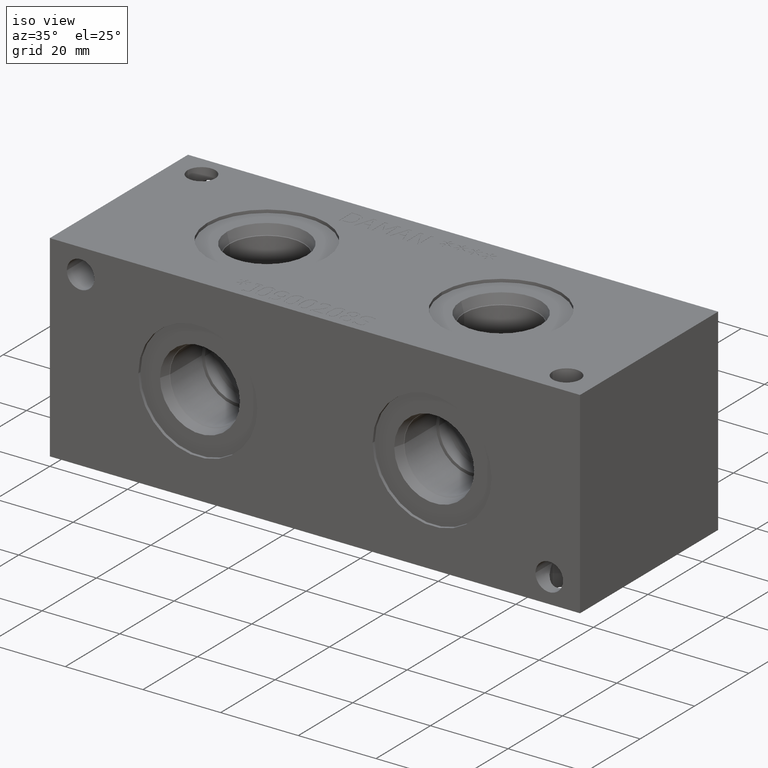
[diagram: clean part render]
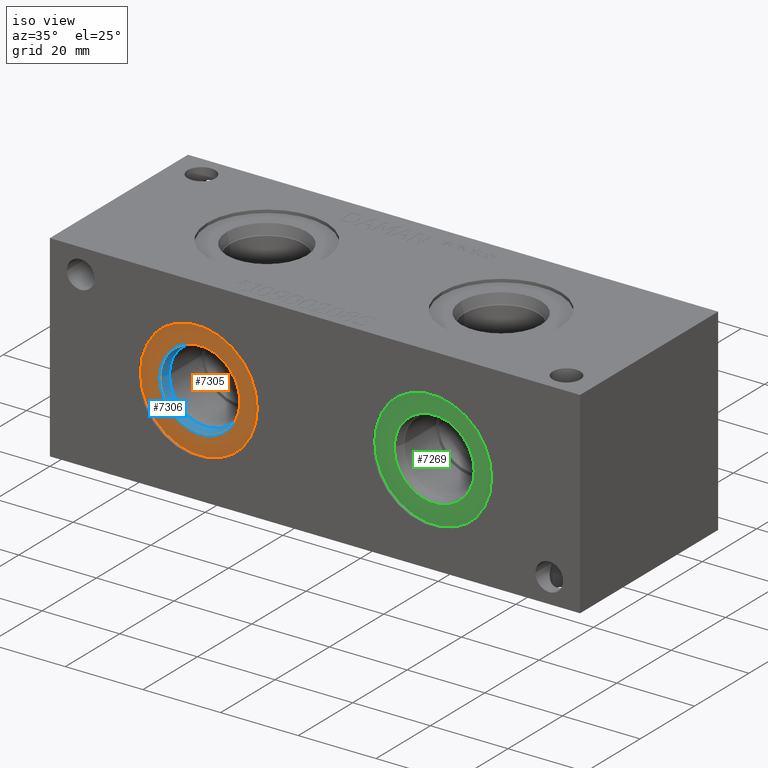
[diagram: same view with three faces highlighted in distinct colors, each labeled with its STEP entity id]
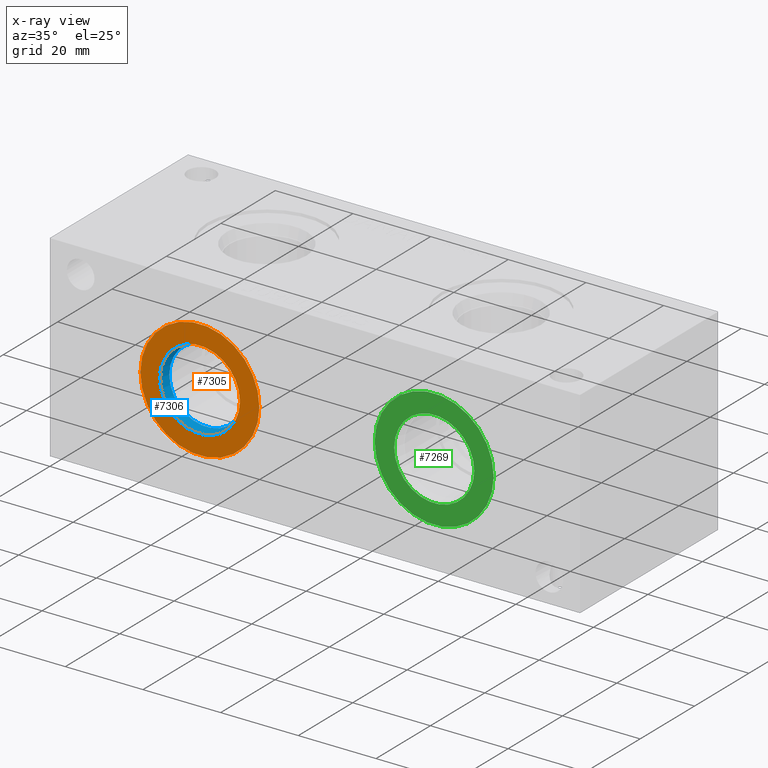
[diagram: x-ray of the same camera — body ghosted, the three highlighted faces saturated]
A machine part, iso view with three faces highlighted in distinct colors.
The next image is the same camera in x-ray (body ghosted, the three faces saturated) — at least one of them is partly hidden behind the body in this view.
Their STEP definitions:

[orange] entity #7305 — the highlighted planar face has unit normal (0, 1, 0).
#134=CIRCLE('',#7644,15.3162);
#135=CIRCLE('',#7645,15.3162);
#136=CIRCLE('',#7647,10.2997);
#137=CIRCLE('',#7648,10.2997);
#194=FACE_BOUND('',#1178,.T.);
#401=PLANE('',#7646);
#764=FACE_OUTER_BOUND('',#1177,.T.);
#1177=EDGE_LOOP('',(#6403,#6404));
#1178=EDGE_LOOP('',(#6405,#6406));
#3438=VERTEX_POINT('',#12742);
#3439=VERTEX_POINT('',#12744);
#3440=VERTEX_POINT('',#12748);
#3441=VERTEX_POINT('',#12749);
#4441=EDGE_CURVE('',#3438,#3439,#134,.T.);
#4442=EDGE_CURVE('',#3439,#3438,#135,.T.);
#4443=EDGE_CURVE('',#3440,#3441,#136,.T.);
#4444=EDGE_CURVE('',#3441,#3440,#137,.T.);
#6403=ORIENTED_EDGE('',*,*,#4442,.F.);
#6404=ORIENTED_EDGE('',*,*,#4441,.F.);
#6405=ORIENTED_EDGE('',*,*,#4443,.T.);
#6406=ORIENTED_EDGE('',*,*,#4444,.T.);
#7305=ADVANCED_FACE('',(#764,#194),#401,.F.);
#7644=AXIS2_PLACEMENT_3D('',#12745,#8935,#8936);
#7645=AXIS2_PLACEMENT_3D('',#12746,#8937,#8938);
#7646=AXIS2_PLACEMENT_3D('',#12747,#8939,#8940);
#7647=AXIS2_PLACEMENT_3D('',#12750,#8941,#8942);
#7648=AXIS2_PLACEMENT_3D('',#12751,#8943,#8944);
#8935=DIRECTION('center_axis',(0.,1.,0.));
#8936=DIRECTION('ref_axis',(1.,0.,0.));
#8937=DIRECTION('center_axis',(0.,1.,0.));
#8938=DIRECTION('ref_axis',(1.,0.,0.));
#8939=DIRECTION('center_axis',(0.,1.,0.));
#8940=DIRECTION('ref_axis',(0.,0.,1.));
#8941=DIRECTION('center_axis',(0.,1.,0.));
#8942=DIRECTION('ref_axis',(1.,0.,0.));
#8943=DIRECTION('center_axis',(0.,1.,0.));
#8944=DIRECTION('ref_axis',(1.,0.,0.));
#12742=CARTESIAN_POINT('',(22.7838,0.7874,25.4));
#12744=CARTESIAN_POINT('',(53.4162,0.7874,25.4));
#12745=CARTESIAN_POINT('Origin',(38.1,0.7874,25.4));
#12746=CARTESIAN_POINT('Origin',(38.1,0.7874,25.4));
#12747=CARTESIAN_POINT('Origin',(48.3997,0.7874,25.4));
#12748=CARTESIAN_POINT('',(48.3997,0.7874,25.4));
#12749=CARTESIAN_POINT('',(27.8003,0.787400000000001,25.4));
#12750=CARTESIAN_POINT('Origin',(38.1,0.7874,25.4));
#12751=CARTESIAN_POINT('Origin',(38.1,0.7874,25.4));

[blue] entity #7306 — the highlighted conical surface has half-angle 15.05 deg.
#39=CONICAL_SURFACE('',#7649,9.96315000000001,0.262678410964687);
#136=CIRCLE('',#7647,10.2997);
#137=CIRCLE('',#7648,10.2997);
#138=CIRCLE('',#7650,9.6266);
#139=CIRCLE('',#7651,9.6266);
#765=FACE_OUTER_BOUND('',#1179,.T.);
#1179=EDGE_LOOP('',(#6407,#6408,#6409,#6410,#6411,#6412));
#1847=LINE('',#12754,#2503);
#2503=VECTOR('',#8947,9.96315000000001);
#3440=VERTEX_POINT('',#12748);
#3441=VERTEX_POINT('',#12749);
#3442=VERTEX_POINT('',#12753);
#3443=VERTEX_POINT('',#12755);
#4443=EDGE_CURVE('',#3440,#3441,#136,.T.);
#4444=EDGE_CURVE('',#3441,#3440,#137,.T.);
#4445=EDGE_CURVE('',#3441,#3442,#1847,.T.);
#4446=EDGE_CURVE('',#3442,#3443,#138,.T.);
#4447=EDGE_CURVE('',#3443,#3442,#139,.T.);
#6407=ORIENTED_EDGE('',*,*,#4443,.F.);
#6408=ORIENTED_EDGE('',*,*,#4444,.F.);
#6409=ORIENTED_EDGE('',*,*,#4445,.T.);
#6410=ORIENTED_EDGE('',*,*,#4446,.T.);
#6411=ORIENTED_EDGE('',*,*,#4447,.T.);
#6412=ORIENTED_EDGE('',*,*,#4445,.F.);
#7306=ADVANCED_FACE('',(#765),#39,.F.);
#7647=AXIS2_PLACEMENT_3D('',#12750,#8941,#8942);
#7648=AXIS2_PLACEMENT_3D('',#12751,#8943,#8944);
#7649=AXIS2_PLACEMENT_3D('',#12752,#8945,#8946);
#7650=AXIS2_PLACEMENT_3D('',#12756,#8948,#8949);
#7651=AXIS2_PLACEMENT_3D('',#12757,#8950,#8951);
#8941=DIRECTION('center_axis',(0.,1.,0.));
#8942=DIRECTION('ref_axis',(1.,0.,0.));
#8943=DIRECTION('center_axis',(0.,1.,0.));
#8944=DIRECTION('ref_axis',(1.,0.,0.));
#8945=DIRECTION('center_axis',(0.,-1.,0.));
#8946=DIRECTION('ref_axis',(1.,0.,0.));
#8947=DIRECTION('',(0.259668016178309,0.965697945205446,-3.1800160485371E-17));
#8948=DIRECTION('center_axis',(0.,1.,0.));
#8949=DIRECTION('ref_axis',(1.,0.,0.));
#8950=DIRECTION('center_axis',(0.,1.,0.));
#8951=DIRECTION('ref_axis',(1.,0.,0.));
#12748=CARTESIAN_POINT('',(48.3997,0.7874,25.4));
#12749=CARTESIAN_POINT('',(27.8003,0.787400000000001,25.4));
#12750=CARTESIAN_POINT('Origin',(38.1,0.7874,25.4));
#12751=CARTESIAN_POINT('Origin',(38.1,0.7874,25.4));
#12752=CARTESIAN_POINT('Origin',(38.1,2.03901985,25.4));
#12753=CARTESIAN_POINT('',(28.4734,3.2906397,25.4));
#12754=CARTESIAN_POINT('',(28.13685,2.03901985,25.4));
#12755=CARTESIAN_POINT('',(47.7266,3.2906397,25.4));
#12756=CARTESIAN_POINT('Origin',(38.1,3.2906397,25.4));
#12757=CARTESIAN_POINT('Origin',(38.1,3.2906397,25.4));

[green] entity #7269 — the highlighted planar face has unit normal (0, 1, 0).
#82=CIRCLE('',#7542,15.3162);
#83=CIRCLE('',#7543,15.3162);
#84=CIRCLE('',#7545,10.2997);
#85=CIRCLE('',#7546,10.2997);
#189=FACE_BOUND('',#1137,.T.);
#396=PLANE('',#7544);
#728=FACE_OUTER_BOUND('',#1136,.T.);
#1136=EDGE_LOOP('',(#6224,#6225));
#1137=EDGE_LOOP('',(#6226,#6227));
#3375=VERTEX_POINT('',#12464);
#3376=VERTEX_POINT('',#12466);
#3377=VERTEX_POINT('',#12470);
#3378=VERTEX_POINT('',#12471);
#4342=EDGE_CURVE('',#3375,#3376,#82,.T.);
#4343=EDGE_CURVE('',#3376,#3375,#83,.T.);
#4344=EDGE_CURVE('',#3377,#3378,#84,.T.);
#4345=EDGE_CURVE('',#3378,#3377,#85,.T.);
#6224=ORIENTED_EDGE('',*,*,#4343,.F.);
#6225=ORIENTED_EDGE('',*,*,#4342,.F.);
#6226=ORIENTED_EDGE('',*,*,#4344,.T.);
#6227=ORIENTED_EDGE('',*,*,#4345,.T.);
#7269=ADVANCED_FACE('',(#728,#189),#396,.F.);
#7542=AXIS2_PLACEMENT_3D('',#12467,#8710,#8711);
#7543=AXIS2_PLACEMENT_3D('',#12468,#8712,#8713);
#7544=AXIS2_PLACEMENT_3D('',#12469,#8714,#8715);
#7545=AXIS2_PLACEMENT_3D('',#12472,#8716,#8717);
#7546=AXIS2_PLACEMENT_3D('',#12473,#8718,#8719);
#8710=DIRECTION('center_axis',(0.,1.,0.));
#8711=DIRECTION('ref_axis',(1.,0.,0.));
#8712=DIRECTION('center_axis',(0.,1.,0.));
#8713=DIRECTION('ref_axis',(1.,0.,0.));
#8714=DIRECTION('center_axis',(0.,1.,0.));
#8715=DIRECTION('ref_axis',(0.,0.,1.));
#8716=DIRECTION('center_axis',(0.,1.,0.));
#8717=DIRECTION('ref_axis',(1.,0.,0.));
#8718=DIRECTION('center_axis',(0.,1.,0.));
#8719=DIRECTION('ref_axis',(1.,0.,0.));
#12464=CARTESIAN_POINT('',(83.1088,0.7874,25.4));
#12466=CARTESIAN_POINT('',(113.7412,0.7874,25.4));
#12467=CARTESIAN_POINT('Origin',(98.425,0.7874,25.4));
#12468=CARTESIAN_POINT('Origin',(98.425,0.7874,25.4));
#12469=CARTESIAN_POINT('Origin',(108.7247,0.7874,25.4));
#12470=CARTESIAN_POINT('',(108.7247,0.7874,25.4));
#12471=CARTESIAN_POINT('',(88.1253,0.787399999999997,25.4));
#12472=CARTESIAN_POINT('Origin',(98.425,0.7874,25.4));
#12473=CARTESIAN_POINT('Origin',(98.425,0.7874,25.4));